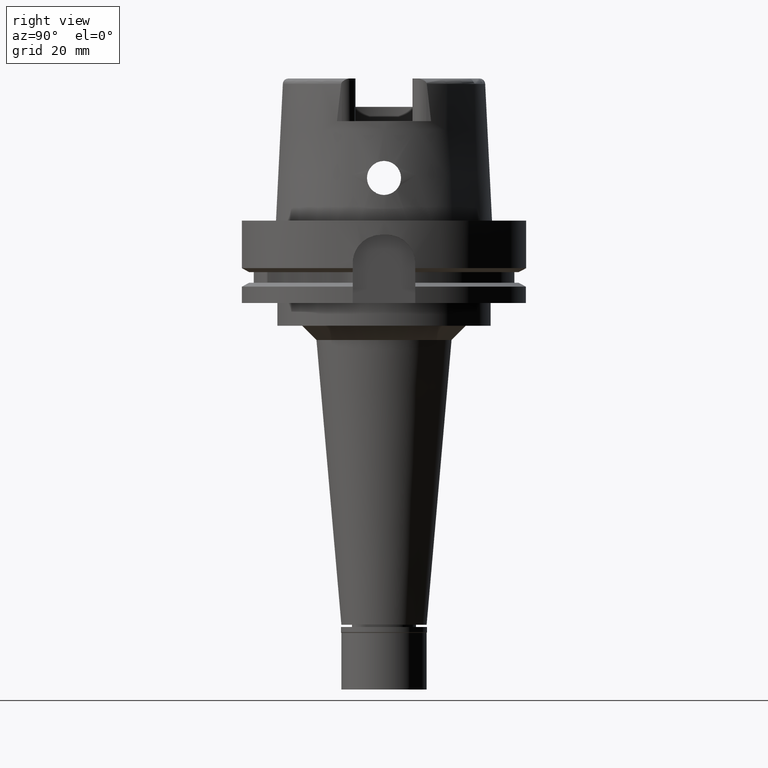
[diagram: clean part render]
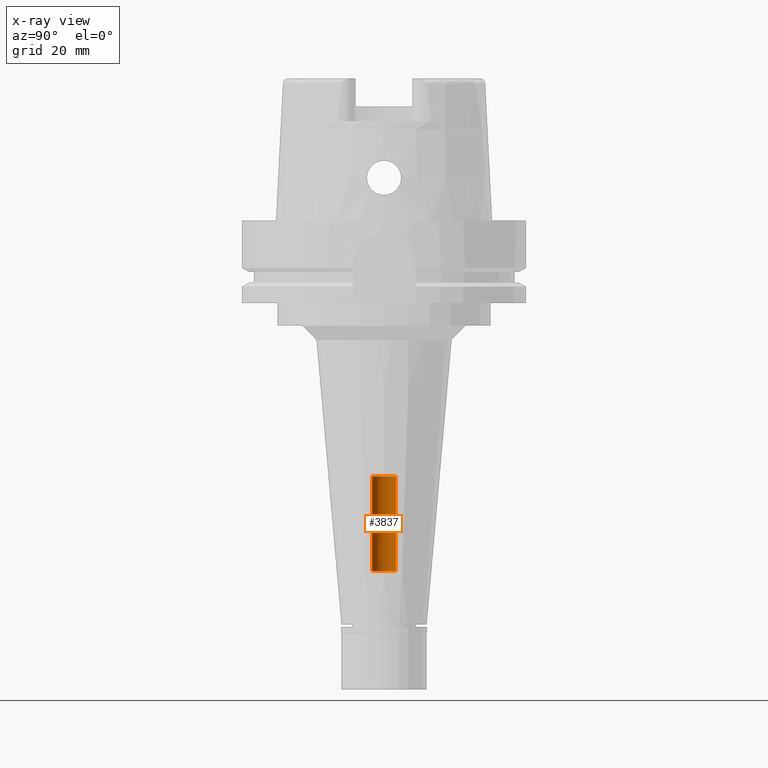
[diagram: x-ray — body ghosted, one internal face saturated and labeled with its STEP entity id]
A machine part, right view, then the same camera in x-ray: the body is ghosted and one INTERNAL B-rep face — a face not visible from any outside direction — is saturated and labeled: STEP entity #3837.
In plain terms, the highlighted cylindrical surface (edge-blend (fillet) strip) has radius 4.2 mm, axis along (0, 0, 1).
Its self-contained STEP definition (entity closure, byte-faithful):
#149 = AXIS2_PLACEMENT_3D ( 'NONE', #2877, #4614, #476 ) ;
#198 = CARTESIAN_POINT ( 'NONE',  ( 0.0000000000000000000, 4.200000000000000178, -123.3000000000000114 ) ) ;
#262 = CARTESIAN_POINT ( 'NONE',  ( 0.0000000000000000000, -4.200000000000000178, -90.00000000000000000 ) ) ;
#476 = DIRECTION ( 'NONE',  ( 0.0000000000000000000, -1.000000000000000000, 0.0000000000000000000 ) ) ;
#695 = AXIS2_PLACEMENT_3D ( 'NONE', #2871, #1640, #4298 ) ;
#697 = VERTEX_POINT ( 'NONE', #1181 ) ;
#1095 = VERTEX_POINT ( 'NONE', #2108 ) ;
#1181 = CARTESIAN_POINT ( 'NONE',  ( 0.0000000000000000000, 4.200000000000000178, -90.00000000000000000 ) ) ;
#1217 = AXIS2_PLACEMENT_3D ( 'NONE', #2315, #2691, #4032 ) ;
#1292 = ORIENTED_EDGE ( 'NONE', *, *, #3037, .T. ) ;
#1321 = DIRECTION ( 'NONE',  ( 0.0000000000000000000, 0.0000000000000000000, 1.000000000000000000 ) ) ;
#1464 = CARTESIAN_POINT ( 'NONE',  ( 0.0000000000000000000, -4.200000000000000178, -123.3000000000000114 ) ) ;
#1640 = DIRECTION ( 'NONE',  ( 0.0000000000000000000, 0.0000000000000000000, 1.000000000000000000 ) ) ;
#1671 = CYLINDRICAL_SURFACE ( 'NONE', #695, 4.200000000000000178 ) ;
#1879 = CIRCLE ( 'NONE', #149, 4.200000000000000178 ) ;
#2108 = CARTESIAN_POINT ( 'NONE',  ( 0.0000000000000000000, -4.200000000000000178, -123.3000000000000114 ) ) ;
#2315 = CARTESIAN_POINT ( 'NONE',  ( 0.0000000000000000000, 0.0000000000000000000, -90.00000000000000000 ) ) ;
#2435 = ORIENTED_EDGE ( 'NONE', *, *, #4436, .T. ) ;
#2584 = EDGE_LOOP ( 'NONE', ( #2435, #3458, #1292, #4647 ) ) ;
#2691 = DIRECTION ( 'NONE',  ( 0.0000000000000000000, 0.0000000000000000000, 1.000000000000000000 ) ) ;
#2838 = EDGE_CURVE ( 'NONE', #1095, #4115, #4393, .T. ) ;
#2871 = CARTESIAN_POINT ( 'NONE',  ( 0.0000000000000000000, 0.0000000000000000000, -168.7150000000000034 ) ) ;
#2877 = CARTESIAN_POINT ( 'NONE',  ( 0.0000000000000000000, 0.0000000000000000000, -123.3000000000000114 ) ) ;
#3037 = EDGE_CURVE ( 'NONE', #1095, #4449, #1879, .T. ) ;
#3458 = ORIENTED_EDGE ( 'NONE', *, *, #2838, .F. ) ;
#3837 = ADVANCED_FACE ( 'NONE', ( #5439 ), #1671, .F. ) ;
#3902 = LINE ( 'NONE', #5266, #5132 ) ;
#4032 = DIRECTION ( 'NONE',  ( 0.0000000000000000000, 1.000000000000000000, 0.0000000000000000000 ) ) ;
#4115 = VERTEX_POINT ( 'NONE', #262 ) ;
#4273 = EDGE_CURVE ( 'NONE', #4449, #697, #3902, .T. ) ;
#4298 = DIRECTION ( 'NONE',  ( 0.0000000000000000000, 1.000000000000000000, 0.0000000000000000000 ) ) ;
#4313 = VECTOR ( 'NONE', #4889, 1000.000000000000000 ) ;
#4393 = LINE ( 'NONE', #1464, #4313 ) ;
#4436 = EDGE_CURVE ( 'NONE', #697, #4115, #5224, .T. ) ;
#4449 = VERTEX_POINT ( 'NONE', #198 ) ;
#4614 = DIRECTION ( 'NONE',  ( 0.0000000000000000000, 0.0000000000000000000, -1.000000000000000000 ) ) ;
#4647 = ORIENTED_EDGE ( 'NONE', *, *, #4273, .T. ) ;
#4889 = DIRECTION ( 'NONE',  ( 0.0000000000000000000, 0.0000000000000000000, 1.000000000000000000 ) ) ;
#5132 = VECTOR ( 'NONE', #1321, 1000.000000000000000 ) ;
#5224 = CIRCLE ( 'NONE', #1217, 4.200000000000000178 ) ;
#5266 = CARTESIAN_POINT ( 'NONE',  ( 0.0000000000000000000, 4.200000000000000178, -123.3000000000000114 ) ) ;
#5439 = FACE_OUTER_BOUND ( 'NONE', #2584, .T. ) ;